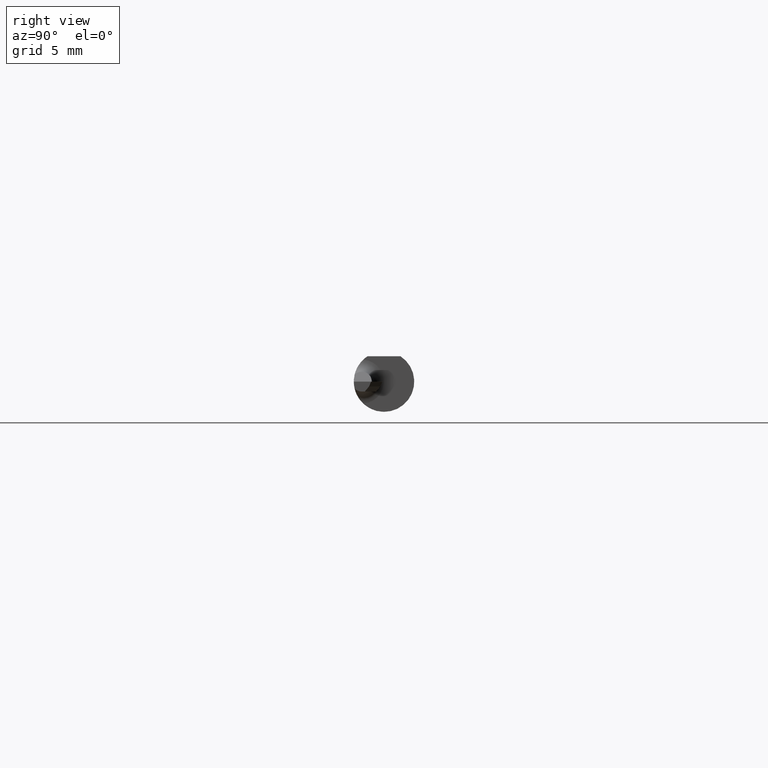
[diagram: clean part render]
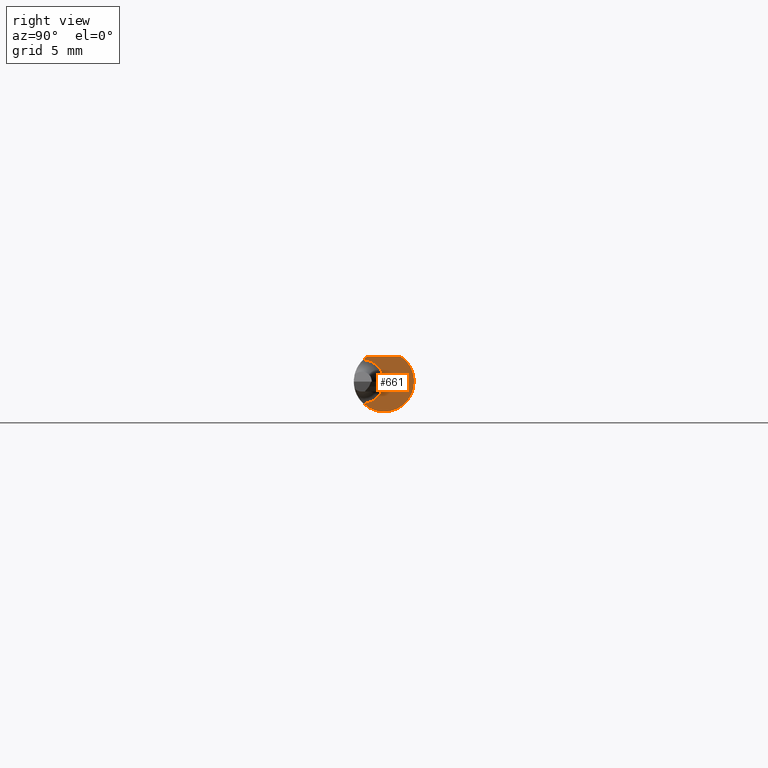
[diagram: same view with one face highlighted and labeled with its STEP entity id]
A machine part, right view. The second image highlights one B-rep face of the part: STEP entity #661.
In plain terms, the highlighted planar face has unit normal (1, 0, 0).
Its self-contained STEP definition (entity closure, byte-faithful):
#28 = AXIS2_PLACEMENT_3D ( 'NONE', #536, #436, #392 ) ;
#35 = DIRECTION ( 'NONE',  ( 1.000000000000000000, 2.651650034397991252E-17, 0.000000000000000000 ) ) ;
#56 = CIRCLE ( 'NONE', #196, 0.04549999999999999878 ) ;
#68 = ORIENTED_EDGE ( 'NONE', *, *, #680, .T. ) ;
#76 = AXIS2_PLACEMENT_3D ( 'NONE', #710, #606, #323 ) ;
#92 = FACE_OUTER_BOUND ( 'NONE', #441, .T. ) ;
#118 = EDGE_CURVE ( 'NONE', #125, #559, #303, .T. ) ;
#125 = VERTEX_POINT ( 'NONE', #332 ) ;
#162 = CARTESIAN_POINT ( 'NONE',  ( 1.150000000000000355, -0.04274258451472191106, 0.04539376575039632405 ) ) ;
#167 = EDGE_CURVE ( 'NONE', #711, #652, #456, .T. ) ;
#196 = AXIS2_PLACEMENT_3D ( 'NONE', #256, #463, #696 ) ;
#239 = ORIENTED_EDGE ( 'NONE', *, *, #167, .T. ) ;
#256 = CARTESIAN_POINT ( 'NONE',  ( 1.150000000000000355, -0.04585000000000003656, 0.000000000000000000 ) ) ;
#261 = CARTESIAN_POINT ( 'NONE',  ( 1.150000000000000355, 0.06234999999999999570, 0.05234999999999997294 ) ) ;
#269 = AXIS2_PLACEMENT_3D ( 'NONE', #535, #35, #700 ) ;
#278 = LINE ( 'NONE', #261, #667 ) ;
#288 = ORIENTED_EDGE ( 'NONE', *, *, #118, .T. ) ;
#303 = CIRCLE ( 'NONE', #28, 0.06235000000000000264 ) ;
#323 = DIRECTION ( 'NONE',  ( 0.000000000000000000, 1.000000000000000000, 0.000000000000000000 ) ) ;
#331 = PLANE ( 'NONE',  #269 ) ;
#332 = CARTESIAN_POINT ( 'NONE',  ( 1.150000000000000355, -0.03386738844375224849, 0.05234999999999997294 ) ) ;
#359 = CARTESIAN_POINT ( 'NONE',  ( 1.150000000000000355, -0.04274258451472191106, -0.04539376575039632405 ) ) ;
#392 = DIRECTION ( 'NONE',  ( 0.000000000000000000, 1.000000000000000000, 0.000000000000000000 ) ) ;
#436 = DIRECTION ( 'NONE',  ( 1.000000000000000000, 2.651650034397990944E-17, 0.000000000000000000 ) ) ;
#441 = EDGE_LOOP ( 'NONE', ( #239, #607, #288, #68 ) ) ;
#456 = CIRCLE ( 'NONE', #76, 0.06235000000000000264 ) ;
#463 = DIRECTION ( 'NONE',  ( -1.000000000000000000, -2.651650034397990944E-17, -0.000000000000000000 ) ) ;
#535 = CARTESIAN_POINT ( 'NONE',  ( 1.150000000000000355, 0.06234999999999996101, 0.000000000000000000 ) ) ;
#536 = CARTESIAN_POINT ( 'NONE',  ( 1.150000000000000355, 0.000000000000000000, 0.000000000000000000 ) ) ;
#559 = VERTEX_POINT ( 'NONE', #162 ) ;
#606 = DIRECTION ( 'NONE',  ( 1.000000000000000000, 2.651650034397990944E-17, 0.000000000000000000 ) ) ;
#607 = ORIENTED_EDGE ( 'NONE', *, *, #609, .F. ) ;
#609 = EDGE_CURVE ( 'NONE', #125, #652, #278, .T. ) ;
#650 = CARTESIAN_POINT ( 'NONE',  ( 1.150000000000000355, 0.03386738844375224849, 0.05234999999999997294 ) ) ;
#652 = VERTEX_POINT ( 'NONE', #650 ) ;
#661 = ADVANCED_FACE ( 'NONE', ( #92 ), #331, .T. ) ;
#667 = VECTOR ( 'NONE', #706, 39.37007874015748143 ) ;
#680 = EDGE_CURVE ( 'NONE', #559, #711, #56, .T. ) ;
#696 = DIRECTION ( 'NONE',  ( 0.000000000000000000, -1.000000000000000000, 0.000000000000000000 ) ) ;
#700 = DIRECTION ( 'NONE',  ( -2.651650034397991252E-17, 1.000000000000000000, 0.000000000000000000 ) ) ;
#706 = DIRECTION ( 'NONE',  ( -2.651650034397991252E-17, 1.000000000000000000, 0.000000000000000000 ) ) ;
#710 = CARTESIAN_POINT ( 'NONE',  ( 1.150000000000000355, 0.000000000000000000, 0.000000000000000000 ) ) ;
#711 = VERTEX_POINT ( 'NONE', #359 ) ;